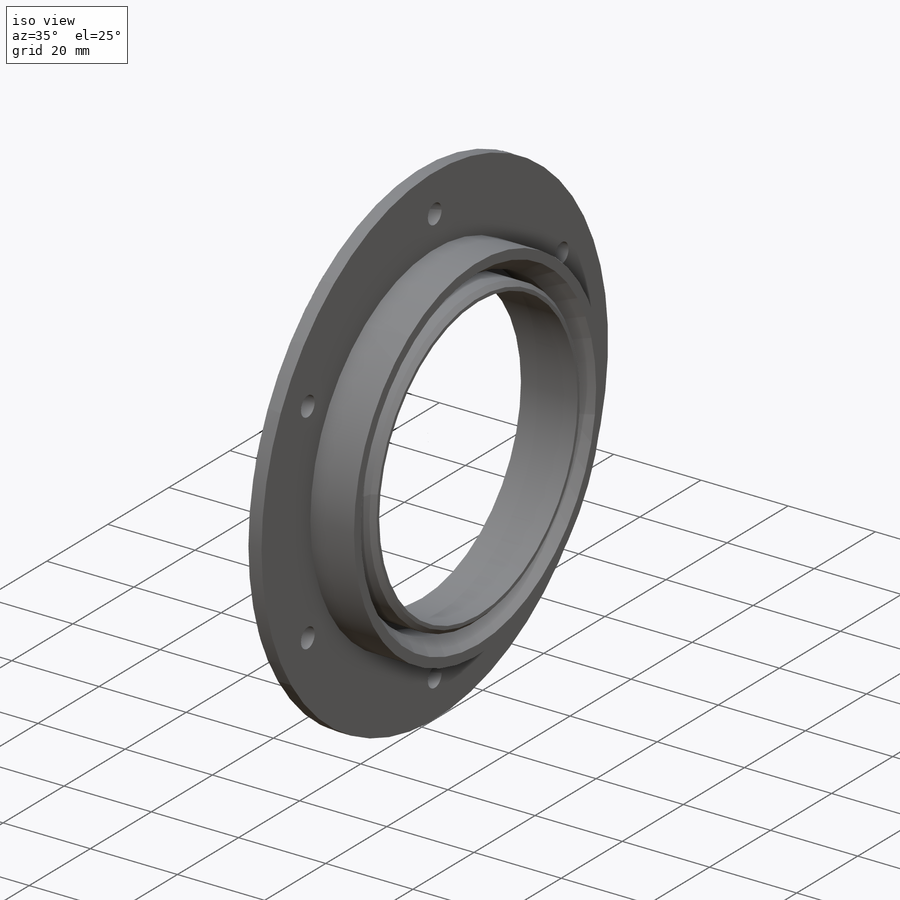
[diagram: iso view]
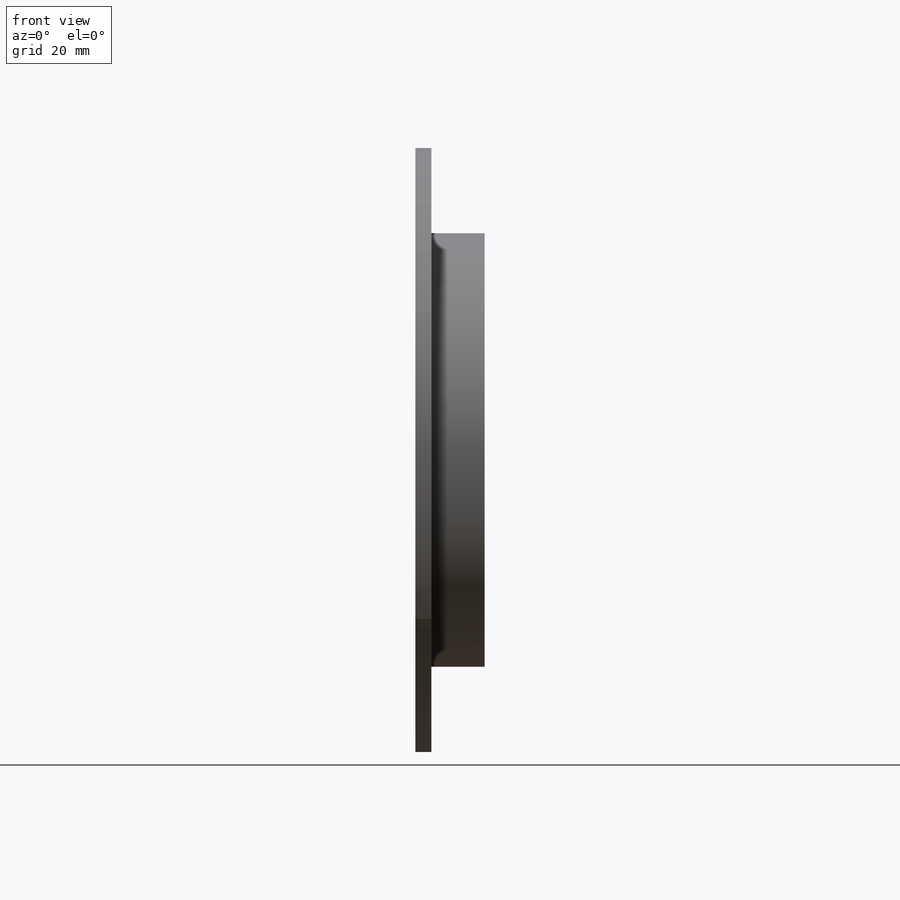
[diagram: front view]
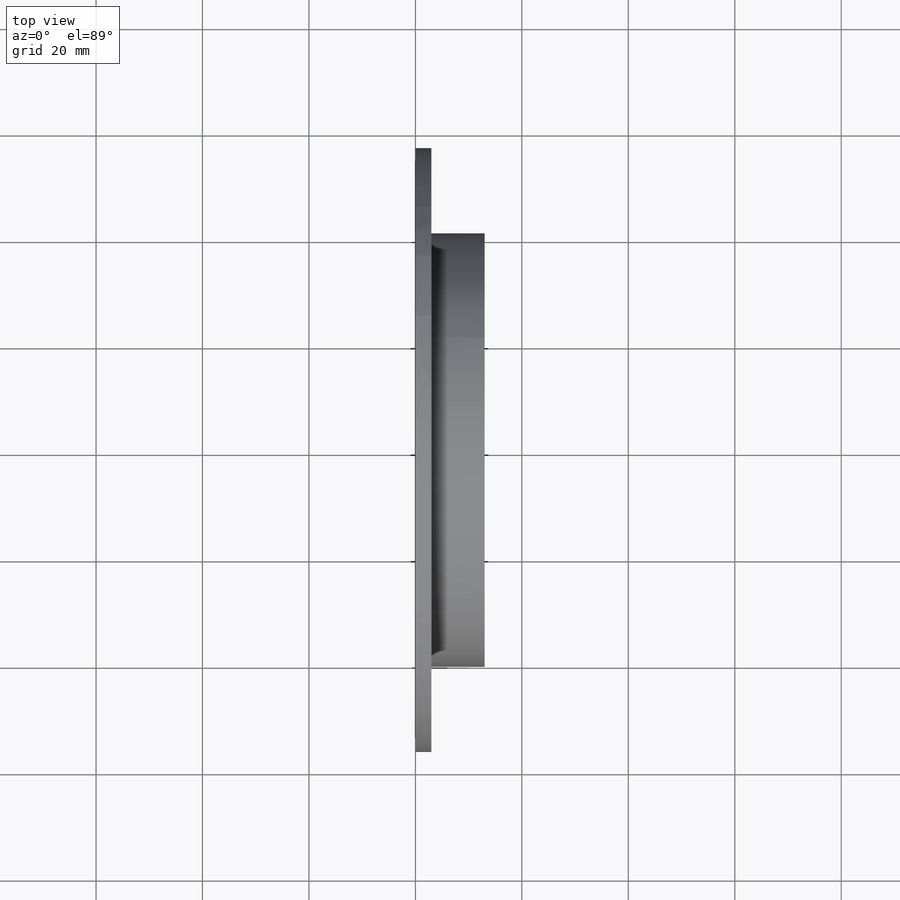
[diagram: top view]
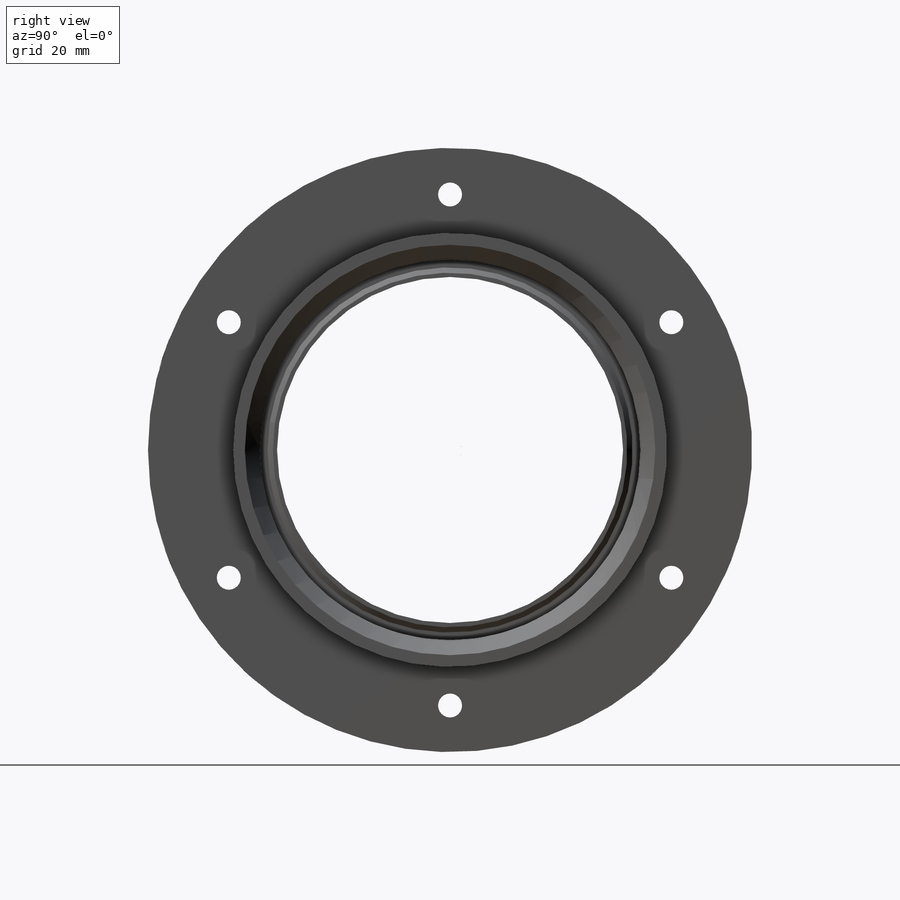
[diagram: right view]
SOLIDWORKS PART (.sldprt)
format: sldprt  version: not decoded by parser v0  size: 222,208 bytes
history: native  units: mm
features: sketch x2, chamfer x2, material x1, revolve x1, cut_extrude x1, pattern_circular x1 (+11 scaffold rows collapsed)
feature tree (19):
  scaffold x11  (default folders/planes/origin — collapsed)
  material  "ABS"
  sketch  "Sketch1"  dims[D1=3.0mm D2=35.75mm D3=34.3mm D4=10.0mm D5=32.5mm D6=5.0mm D7=16.0mm D8=~11.441875mm]
  revolve  "Revolve1"  Angle=360deg
  chamfer  "Chamfer1"  Distance=4mm Angle=35deg
  chamfer  "Chamfer2"  Distance=1mm Angle=45deg
  sketch  "Sketch2"  dims[c1.D1=4.5mm c1.D2=4.5mm c2.D1=48.0mm]
  cut_extrude  "Cut-Extrude1"  Depth=10mm
  pattern_circular  "CirPattern1"  Count=6 Angle=60deg
decode coverage: 7 of 7 modeling features carry decoded parameters
note: ~ marks probable driven/reference dimensions
note: suppression state not decoded; provenance and decode notes live in map.json
